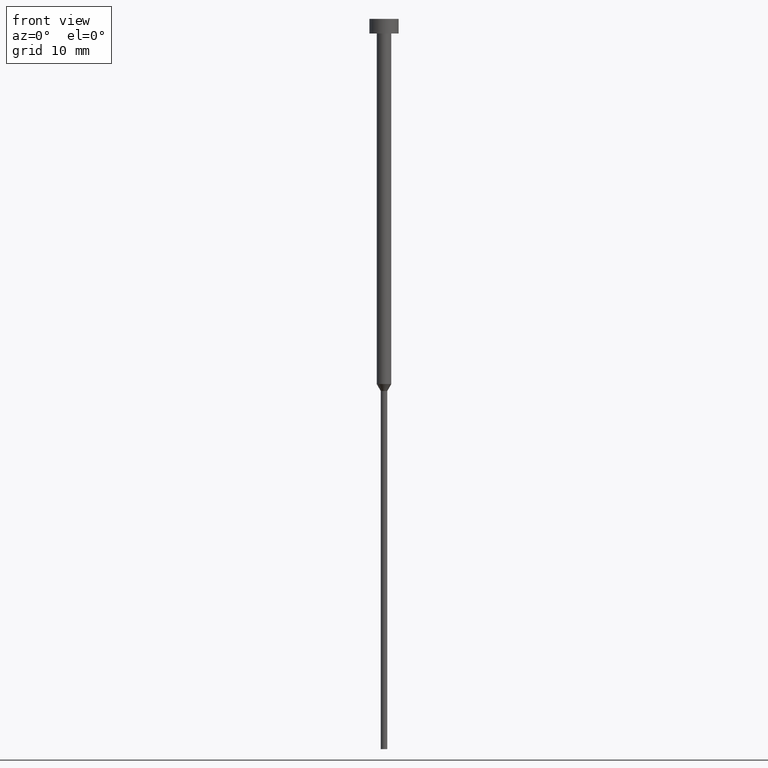
[diagram: clean part render]
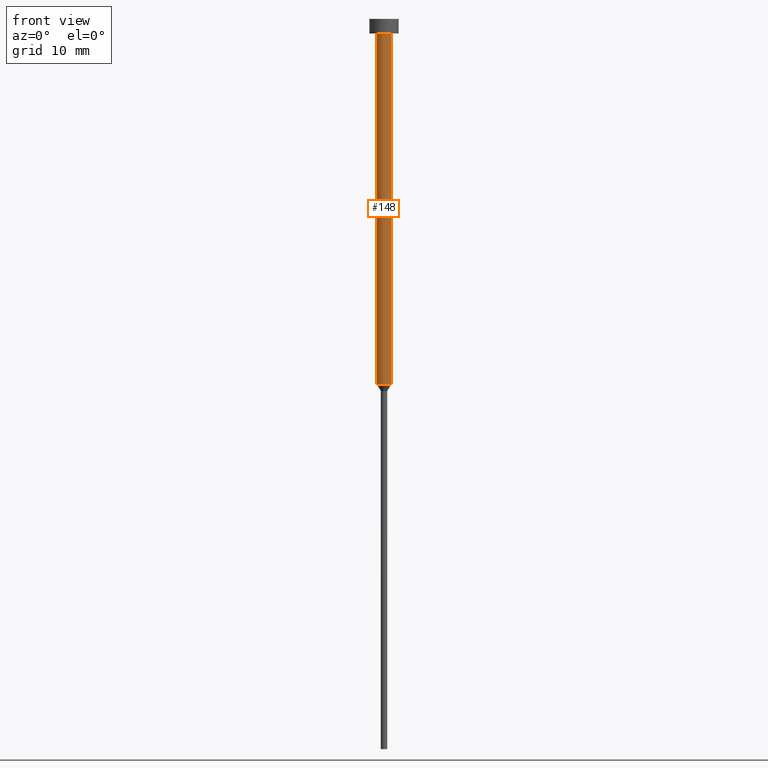
[diagram: same view with one face highlighted and labeled with its STEP entity id]
A machine part, front view. The second image highlights one B-rep face of the part: STEP entity #148.
In plain terms, the highlighted cylindrical surface (edge-blend (fillet) strip) has radius 1 mm, axis along (-0, -0, 1).
Its self-contained STEP definition (entity closure, byte-faithful):
#2 = CARTESIAN_POINT ( 'NONE',  ( 1.000000000000003331, 0.000000000000000000, 0.000000000000000000 ) ) ;
#4 = FACE_OUTER_BOUND ( 'NONE', #162, .T. ) ;
#7 = EDGE_CURVE ( 'NONE', #303, #135, #107, .T. ) ;
#8 = CYLINDRICAL_SURFACE ( 'NONE', #292, 1.000000000000003331 ) ;
#15 = CARTESIAN_POINT ( 'NONE',  ( -1.000000000000003553, 1.224646799147357398E-16, -2.000000000000000444 ) ) ;
#53 = CARTESIAN_POINT ( 'NONE',  ( 1.000000000000003109, 0.000000000000000000, -50.00000000000000000 ) ) ;
#58 = CARTESIAN_POINT ( 'NONE',  ( 0.000000000000000000, 0.000000000000000000, -50.00000000000000000 ) ) ;
#60 = EDGE_CURVE ( 'NONE', #303, #320, #87, .T. ) ;
#78 = DIRECTION ( 'NONE',  ( 1.000000000000000000, 0.000000000000000000, 0.000000000000000000 ) ) ;
#87 = LINE ( 'NONE', #181, #223 ) ;
#93 = ORIENTED_EDGE ( 'NONE', *, *, #199, .F. ) ;
#99 = AXIS2_PLACEMENT_3D ( 'NONE', #58, #211, #215 ) ;
#103 = DIRECTION ( 'NONE',  ( -0.000000000000000000, -0.000000000000000000, 1.000000000000000000 ) ) ;
#106 = CARTESIAN_POINT ( 'NONE',  ( 0.000000000000000000, 0.000000000000000000, -2.000000000000000444 ) ) ;
#107 = CIRCLE ( 'NONE', #99, 1.000000000000003109 ) ;
#114 = CIRCLE ( 'NONE', #285, 1.000000000000003553 ) ;
#134 = DIRECTION ( 'NONE',  ( 1.000000000000000000, 0.000000000000000000, 0.000000000000000000 ) ) ;
#135 = VERTEX_POINT ( 'NONE', #53 ) ;
#148 = ADVANCED_FACE ( 'NONE', ( #4 ), #8, .T. ) ;
#162 = EDGE_LOOP ( 'NONE', ( #209, #189, #170, #93 ) ) ;
#170 = ORIENTED_EDGE ( 'NONE', *, *, #176, .T. ) ;
#176 = EDGE_CURVE ( 'NONE', #135, #325, #216, .T. ) ;
#181 = CARTESIAN_POINT ( 'NONE',  ( -1.000000000000003331, 1.224646799147357151E-16, 0.000000000000000000 ) ) ;
#189 = ORIENTED_EDGE ( 'NONE', *, *, #7, .T. ) ;
#190 = VECTOR ( 'NONE', #263, 1000.000000000000000 ) ;
#199 = EDGE_CURVE ( 'NONE', #320, #325, #114, .T. ) ;
#209 = ORIENTED_EDGE ( 'NONE', *, *, #60, .F. ) ;
#211 = DIRECTION ( 'NONE',  ( -0.000000000000000000, -0.000000000000000000, 1.000000000000000000 ) ) ;
#215 = DIRECTION ( 'NONE',  ( 1.000000000000000000, 0.000000000000000000, 0.000000000000000000 ) ) ;
#216 = LINE ( 'NONE', #2, #190 ) ;
#223 = VECTOR ( 'NONE', #253, 1000.000000000000000 ) ;
#251 = CARTESIAN_POINT ( 'NONE',  ( -1.000000000000003109, 1.224646799147356905E-16, -50.00000000000000000 ) ) ;
#253 = DIRECTION ( 'NONE',  ( -0.000000000000000000, -0.000000000000000000, 1.000000000000000000 ) ) ;
#263 = DIRECTION ( 'NONE',  ( -0.000000000000000000, -0.000000000000000000, 1.000000000000000000 ) ) ;
#280 = CARTESIAN_POINT ( 'NONE',  ( 1.000000000000003553, 0.000000000000000000, -2.000000000000000444 ) ) ;
#285 = AXIS2_PLACEMENT_3D ( 'NONE', #106, #336, #78 ) ;
#292 = AXIS2_PLACEMENT_3D ( 'NONE', #333, #103, #134 ) ;
#303 = VERTEX_POINT ( 'NONE', #251 ) ;
#320 = VERTEX_POINT ( 'NONE', #15 ) ;
#325 = VERTEX_POINT ( 'NONE', #280 ) ;
#333 = CARTESIAN_POINT ( 'NONE',  ( 0.000000000000000000, 0.000000000000000000, 0.000000000000000000 ) ) ;
#336 = DIRECTION ( 'NONE',  ( -0.000000000000000000, -0.000000000000000000, 1.000000000000000000 ) ) ;